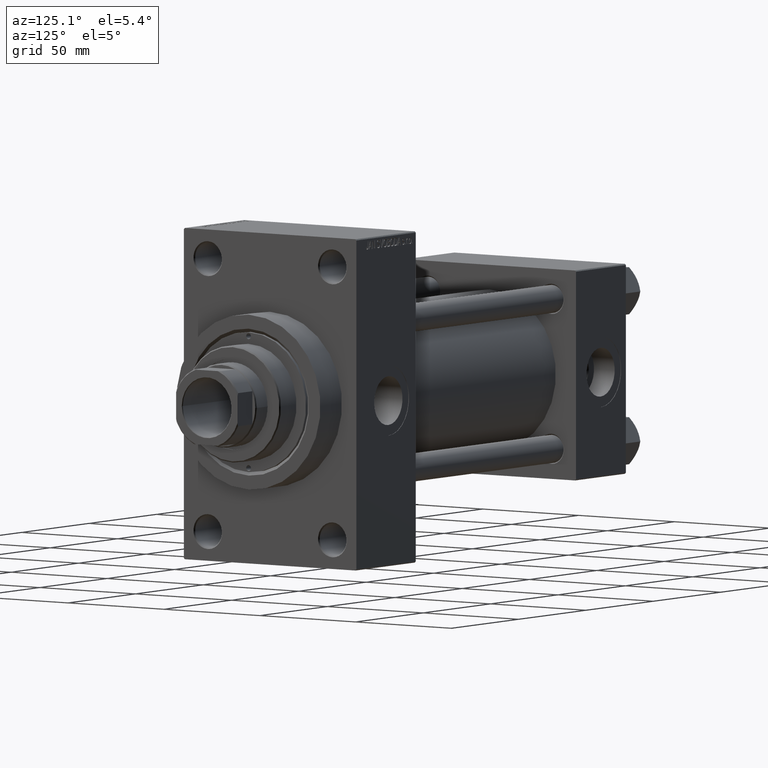
[diagram: clean part render]
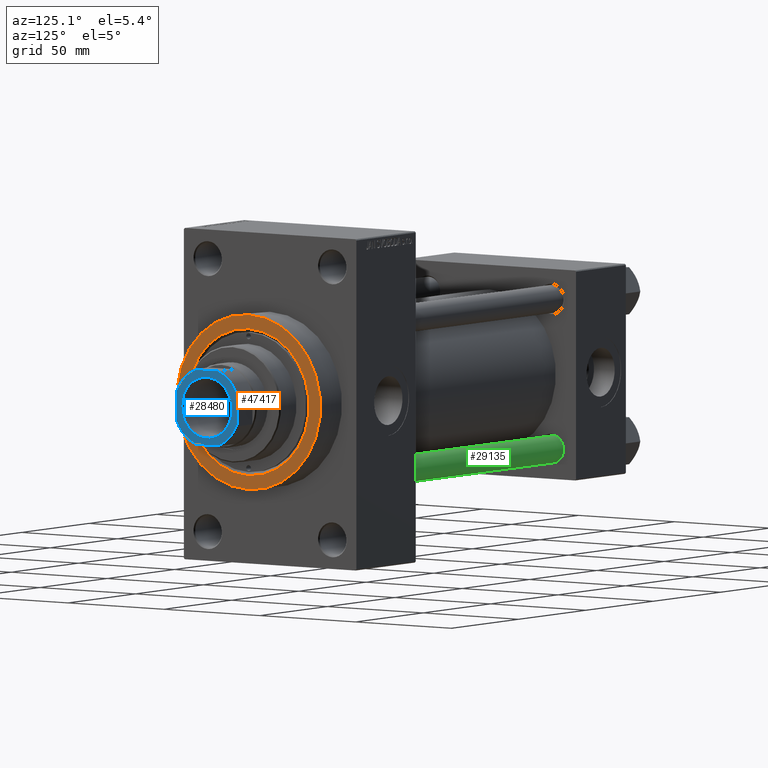
[diagram: same view with three faces highlighted in distinct colors, each labeled with its STEP entity id]
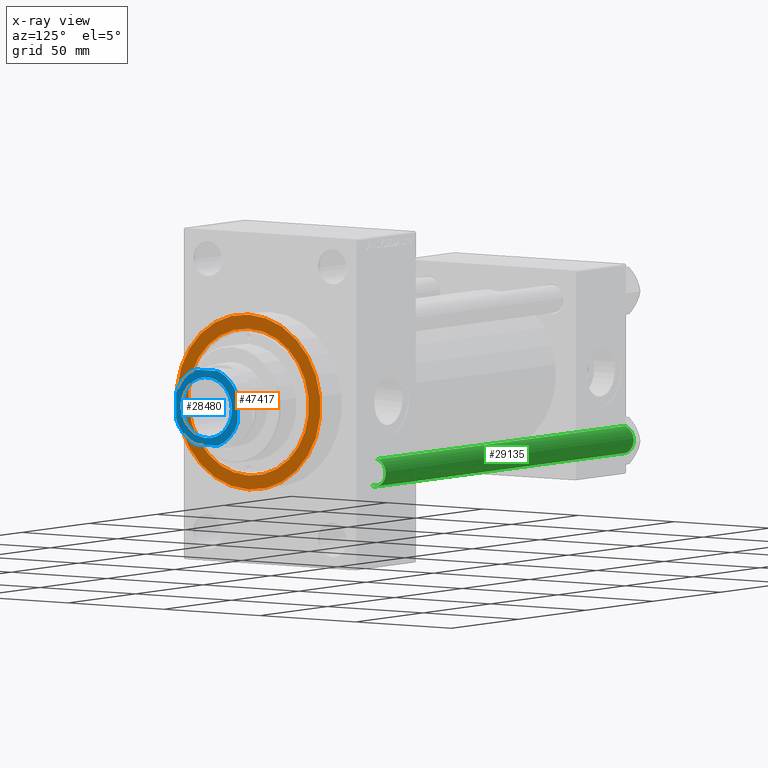
[diagram: x-ray of the same camera — body ghosted, the three highlighted faces saturated]
A machine part, auxiliary view with three faces highlighted in distinct colors.
The next image is the same camera in x-ray (body ghosted, the three faces saturated) — at least one of them is partly hidden behind the body in this view.
Their STEP definitions:

[orange] entity #47417 — the highlighted planar face has unit normal (1, 0, 0).
#881 = AXIS2_PLACEMENT_3D ( 'NONE', #23829, #16165, #20226 ) ;
#2621 = CARTESIAN_POINT ( 'NONE',  ( 216.0000000000000284, 0.000000000000000000, 0.000000000000000000 ) ) ;
#3825 = DIRECTION ( 'NONE',  ( 1.000000000000000000, 0.000000000000000000, 0.000000000000000000 ) ) ;
#4688 = CIRCLE ( 'NONE', #44508, 37.50000000000000711 ) ;
#5022 = CARTESIAN_POINT ( 'NONE',  ( 216.0000000000000284, 0.000000000000000000, -31.50000000000011013 ) ) ;
#5537 = EDGE_LOOP ( 'NONE', ( #28622, #43764 ) ) ;
#5677 = CARTESIAN_POINT ( 'NONE',  ( 216.0000000000000284, 0.000000000000000000, 37.50000000000000711 ) ) ;
#6697 = DIRECTION ( 'NONE',  ( 1.000000000000000000, 0.000000000000000000, 0.000000000000000000 ) ) ;
#10734 = DIRECTION ( 'NONE',  ( 1.000000000000000000, 0.000000000000000000, 0.000000000000000000 ) ) ;
#11610 = CIRCLE ( 'NONE', #881, 31.50000000000011013 ) ;
#13371 = ORIENTED_EDGE ( 'NONE', *, *, #20699, .T. ) ;
#14855 = FACE_BOUND ( 'NONE', #26740, .T. ) ;
#16165 = DIRECTION ( 'NONE',  ( -1.000000000000000000, -0.000000000000000000, -0.000000000000000000 ) ) ;
#16962 = EDGE_CURVE ( 'NONE', #43331, #40019, #42689, .T. ) ;
#17476 = VERTEX_POINT ( 'NONE', #17763 ) ;
#17763 = CARTESIAN_POINT ( 'NONE',  ( 216.0000000000000284, 3.857637417314175311E-15, 31.50000000000011013 ) ) ;
#17926 = CARTESIAN_POINT ( 'NONE',  ( 216.0000000000000284, 0.000000000000000000, 0.000000000000000000 ) ) ;
#18455 = DIRECTION ( 'NONE',  ( 0.000000000000000000, 0.000000000000000000, -1.000000000000000000 ) ) ;
#20226 = DIRECTION ( 'NONE',  ( 0.000000000000000000, 0.000000000000000000, -1.000000000000000000 ) ) ;
#20699 = EDGE_CURVE ( 'NONE', #42938, #17476, #42119, .T. ) ;
#21534 = CARTESIAN_POINT ( 'NONE',  ( 216.0000000000000284, 0.000000000000000000, 0.000000000000000000 ) ) ;
#23829 = CARTESIAN_POINT ( 'NONE',  ( 216.0000000000000284, 0.000000000000000000, 0.000000000000000000 ) ) ;
#24578 = EDGE_CURVE ( 'NONE', #40019, #43331, #4688, .T. ) ;
#25343 = DIRECTION ( 'NONE',  ( 0.000000000000000000, 0.000000000000000000, -1.000000000000000000 ) ) ;
#25396 = CARTESIAN_POINT ( 'NONE',  ( 216.0000000000000284, 0.000000000000000000, 0.000000000000000000 ) ) ;
#25946 = EDGE_CURVE ( 'NONE', #17476, #42938, #11610, .T. ) ;
#26063 = AXIS2_PLACEMENT_3D ( 'NONE', #2621, #40205, #28274 ) ;
#26740 = EDGE_LOOP ( 'NONE', ( #13371, #40189 ) ) ;
#28157 = AXIS2_PLACEMENT_3D ( 'NONE', #25396, #3825, #18455 ) ;
#28274 = DIRECTION ( 'NONE',  ( 0.000000000000000000, 0.000000000000000000, -1.000000000000000000 ) ) ;
#28622 = ORIENTED_EDGE ( 'NONE', *, *, #16962, .T. ) ;
#29010 = FACE_OUTER_BOUND ( 'NONE', #5537, .T. ) ;
#30467 = AXIS2_PLACEMENT_3D ( 'NONE', #21534, #6697, #39768 ) ;
#39768 = DIRECTION ( 'NONE',  ( 0.000000000000000000, 0.000000000000000000, -1.000000000000000000 ) ) ;
#39993 = CARTESIAN_POINT ( 'NONE',  ( 216.0000000000000284, 4.592425496802575156E-15, -37.50000000000000711 ) ) ;
#40019 = VERTEX_POINT ( 'NONE', #39993 ) ;
#40189 = ORIENTED_EDGE ( 'NONE', *, *, #25946, .T. ) ;
#40205 = DIRECTION ( 'NONE',  ( -1.000000000000000000, -0.000000000000000000, -0.000000000000000000 ) ) ;
#42119 = CIRCLE ( 'NONE', #26063, 31.50000000000011013 ) ;
#42689 = CIRCLE ( 'NONE', #30467, 37.50000000000000711 ) ;
#42938 = VERTEX_POINT ( 'NONE', #5022 ) ;
#43331 = VERTEX_POINT ( 'NONE', #5677 ) ;
#43642 = PLANE ( 'NONE',  #28157 ) ;
#43764 = ORIENTED_EDGE ( 'NONE', *, *, #24578, .T. ) ;
#44508 = AXIS2_PLACEMENT_3D ( 'NONE', #17926, #10734, #25343 ) ;
#47417 = ADVANCED_FACE ( 'NONE', ( #14855, #29010 ), #43642, .T. ) ;

[blue] entity #28480 — the highlighted planar face has unit normal (1, 0, 0).
#174 = VERTEX_POINT ( 'NONE', #19118 ) ;
#651 = CIRCLE ( 'NONE', #32822, 13.04999999999997762 ) ;
#1338 = ORIENTED_EDGE ( 'NONE', *, *, #27290, .T. ) ;
#1423 = DIRECTION ( 'NONE',  ( 1.000000000000000000, 0.000000000000000000, 0.000000000000000000 ) ) ;
#1644 = VERTEX_POINT ( 'NONE', #32278 ) ;
#2126 = DIRECTION ( 'NONE',  ( 1.000000000000000000, 0.000000000000000000, 0.000000000000000000 ) ) ;
#2647 = EDGE_CURVE ( 'NONE', #22605, #16824, #5615, .T. ) ;
#3040 = VERTEX_POINT ( 'NONE', #31949 ) ;
#3537 = VECTOR ( 'NONE', #33500, 1000.000000000000000 ) ;
#3793 = DIRECTION ( 'NONE',  ( -0.000000000000000000, 0.000000000000000000, 1.000000000000000000 ) ) ;
#4393 = CARTESIAN_POINT ( 'NONE',  ( 16.00000000000000000, -5.744562646538085460, 210.0000000000000284 ) ) ;
#4765 = ORIENTED_EDGE ( 'NONE', *, *, #6027, .T. ) ;
#4993 = CARTESIAN_POINT ( 'NONE',  ( 0.000000000000000000, 0.000000000000000000, 210.0000000000000284 ) ) ;
#5227 = VERTEX_POINT ( 'NONE', #45173 ) ;
#5233 = DIRECTION ( 'NONE',  ( -0.000000000000000000, 0.000000000000000000, 1.000000000000000000 ) ) ;
#5615 = CIRCLE ( 'NONE', #46968, 17.00000000000001776 ) ;
#6027 = EDGE_CURVE ( 'NONE', #16824, #1644, #28244, .T. ) ;
#6805 = LINE ( 'NONE', #21414, #35118 ) ;
#6877 = VERTEX_POINT ( 'NONE', #39130 ) ;
#8005 = LINE ( 'NONE', #29342, #35249 ) ;
#8302 = DIRECTION ( 'NONE',  ( -0.000000000000000000, 0.000000000000000000, 1.000000000000000000 ) ) ;
#9528 = DIRECTION ( 'NONE',  ( 0.000000000000000000, -0.000000000000000000, -1.000000000000000000 ) ) ;
#9570 = VECTOR ( 'NONE', #40164, 1000.000000000000000 ) ;
#11221 = CARTESIAN_POINT ( 'NONE',  ( -16.00000000000000000, 16.00000000000000000, 210.0000000000000284 ) ) ;
#11224 = ORIENTED_EDGE ( 'NONE', *, *, #17610, .T. ) ;
#12648 = DIRECTION ( 'NONE',  ( 1.000000000000000000, 0.000000000000000000, 0.000000000000000000 ) ) ;
#13319 = AXIS2_PLACEMENT_3D ( 'NONE', #42093, #8302, #19551 ) ;
#13990 = VERTEX_POINT ( 'NONE', #14084 ) ;
#14084 = CARTESIAN_POINT ( 'NONE',  ( 5.744562646538136974, 16.00000000000000000, 210.0000000000000284 ) ) ;
#14153 = EDGE_CURVE ( 'NONE', #13990, #42273, #18392, .T. ) ;
#14314 = ORIENTED_EDGE ( 'NONE', *, *, #14153, .T. ) ;
#14957 = DIRECTION ( 'NONE',  ( -1.084202172485504434E-16, 1.000000000000000000, -0.000000000000000000 ) ) ;
#15391 = AXIS2_PLACEMENT_3D ( 'NONE', #29296, #42978, #43936 ) ;
#16824 = VERTEX_POINT ( 'NONE', #26131 ) ;
#17610 = EDGE_CURVE ( 'NONE', #6877, #13990, #41938, .T. ) ;
#18392 = LINE ( 'NONE', #11221, #3537 ) ;
#18816 = ORIENTED_EDGE ( 'NONE', *, *, #19312, .T. ) ;
#19118 = CARTESIAN_POINT ( 'NONE',  ( -13.04999999999997762, 1.598164072887293210E-15, 210.0000000000000284 ) ) ;
#19312 = EDGE_CURVE ( 'NONE', #5227, #22605, #6805, .T. ) ;
#19409 = VERTEX_POINT ( 'NONE', #4393 ) ;
#19551 = DIRECTION ( 'NONE',  ( 1.000000000000000000, 0.000000000000000000, 0.000000000000000000 ) ) ;
#19639 = EDGE_CURVE ( 'NONE', #174, #3040, #651, .T. ) ;
#19718 = ORIENTED_EDGE ( 'NONE', *, *, #2647, .T. ) ;
#21414 = CARTESIAN_POINT ( 'NONE',  ( -16.00000000000000000, 16.00000000000000000, 210.0000000000000284 ) ) ;
#21858 = PLANE ( 'NONE',  #15391 ) ;
#22605 = VERTEX_POINT ( 'NONE', #35532 ) ;
#23804 = EDGE_LOOP ( 'NONE', ( #1338, #11224, #14314, #25559, #18816, #19718, #4765, #40094 ) ) ;
#25448 = FACE_BOUND ( 'NONE', #41201, .T. ) ;
#25559 = ORIENTED_EDGE ( 'NONE', *, *, #34795, .T. ) ;
#25766 = CARTESIAN_POINT ( 'NONE',  ( -16.00000000000000000, -15.99999999999999645, 210.0000000000000284 ) ) ;
#26131 = CARTESIAN_POINT ( 'NONE',  ( -5.744562646538093453, -15.99999999999999645, 210.0000000000000284 ) ) ;
#26476 = CIRCLE ( 'NONE', #27911, 17.00000000000001776 ) ;
#27290 = EDGE_CURVE ( 'NONE', #19409, #6877, #8005, .T. ) ;
#27737 = CARTESIAN_POINT ( 'NONE',  ( 0.000000000000000000, 0.000000000000000000, 210.0000000000000284 ) ) ;
#27911 = AXIS2_PLACEMENT_3D ( 'NONE', #44329, #3793, #36893 ) ;
#28244 = LINE ( 'NONE', #25766, #9570 ) ;
#28480 = ADVANCED_FACE ( 'NONE', ( #25448, #40090 ), #21858, .T. ) ;
#28966 = CARTESIAN_POINT ( 'NONE',  ( -5.744562646537909600, 16.00000000000000000, 210.0000000000000284 ) ) ;
#29296 = CARTESIAN_POINT ( 'NONE',  ( 0.000000000000000000, 0.000000000000000000, 210.0000000000000284 ) ) ;
#29342 = CARTESIAN_POINT ( 'NONE',  ( 15.99999999999999645, 16.00000000000000000, 210.0000000000000284 ) ) ;
#31278 = ORIENTED_EDGE ( 'NONE', *, *, #38013, .T. ) ;
#31852 = CARTESIAN_POINT ( 'NONE',  ( 0.000000000000000000, 0.000000000000000000, 210.0000000000000284 ) ) ;
#31949 = CARTESIAN_POINT ( 'NONE',  ( 13.04999999999997762, 0.000000000000000000, 210.0000000000000284 ) ) ;
#32278 = CARTESIAN_POINT ( 'NONE',  ( 5.744562646538093453, -15.99999999999999645, 210.0000000000000284 ) ) ;
#32444 = DIRECTION ( 'NONE',  ( 0.000000000000000000, -1.000000000000000000, 0.000000000000000000 ) ) ;
#32822 = AXIS2_PLACEMENT_3D ( 'NONE', #27737, #9528, #12648 ) ;
#33500 = DIRECTION ( 'NONE',  ( -1.000000000000000000, -0.000000000000000000, -0.000000000000000000 ) ) ;
#34073 = AXIS2_PLACEMENT_3D ( 'NONE', #31852, #35914, #2126 ) ;
#34111 = ORIENTED_EDGE ( 'NONE', *, *, #19639, .T. ) ;
#34795 = EDGE_CURVE ( 'NONE', #42273, #5227, #40873, .T. ) ;
#34828 = CIRCLE ( 'NONE', #34073, 13.04999999999997762 ) ;
#35118 = VECTOR ( 'NONE', #32444, 1000.000000000000000 ) ;
#35249 = VECTOR ( 'NONE', #14957, 1000.000000000000000 ) ;
#35532 = CARTESIAN_POINT ( 'NONE',  ( -16.00000000000000000, -5.744562646538084572, 210.0000000000000284 ) ) ;
#35914 = DIRECTION ( 'NONE',  ( 0.000000000000000000, -0.000000000000000000, -1.000000000000000000 ) ) ;
#36893 = DIRECTION ( 'NONE',  ( 1.000000000000000000, 0.000000000000000000, 0.000000000000000000 ) ) ;
#37189 = CARTESIAN_POINT ( 'NONE',  ( 0.000000000000000000, 0.000000000000000000, 210.0000000000000284 ) ) ;
#37649 = DIRECTION ( 'NONE',  ( -0.000000000000000000, 0.000000000000000000, 1.000000000000000000 ) ) ;
#38013 = EDGE_CURVE ( 'NONE', #3040, #174, #34828, .T. ) ;
#39130 = CARTESIAN_POINT ( 'NONE',  ( 16.00000000000000000, 5.744562646538137862, 210.0000000000000284 ) ) ;
#40090 = FACE_OUTER_BOUND ( 'NONE', #23804, .T. ) ;
#40094 = ORIENTED_EDGE ( 'NONE', *, *, #40867, .T. ) ;
#40164 = DIRECTION ( 'NONE',  ( 1.000000000000000000, 0.000000000000000000, 0.000000000000000000 ) ) ;
#40867 = EDGE_CURVE ( 'NONE', #1644, #19409, #26476, .T. ) ;
#40873 = CIRCLE ( 'NONE', #13319, 16.99999999999996092 ) ;
#41192 = AXIS2_PLACEMENT_3D ( 'NONE', #37189, #37649, #1423 ) ;
#41201 = EDGE_LOOP ( 'NONE', ( #31278, #34111 ) ) ;
#41938 = CIRCLE ( 'NONE', #41192, 17.00000000000003553 ) ;
#42093 = CARTESIAN_POINT ( 'NONE',  ( 0.000000000000000000, 0.000000000000000000, 210.0000000000000284 ) ) ;
#42273 = VERTEX_POINT ( 'NONE', #28966 ) ;
#42978 = DIRECTION ( 'NONE',  ( -0.000000000000000000, 0.000000000000000000, 1.000000000000000000 ) ) ;
#43936 = DIRECTION ( 'NONE',  ( 1.000000000000000000, 0.000000000000000000, 0.000000000000000000 ) ) ;
#44329 = CARTESIAN_POINT ( 'NONE',  ( 0.000000000000000000, 0.000000000000000000, 210.0000000000000284 ) ) ;
#45173 = CARTESIAN_POINT ( 'NONE',  ( -16.00000000000000000, 5.744562646537909600, 210.0000000000000284 ) ) ;
#45520 = DIRECTION ( 'NONE',  ( 1.000000000000000000, 0.000000000000000000, 0.000000000000000000 ) ) ;
#46968 = AXIS2_PLACEMENT_3D ( 'NONE', #4993, #5233, #45520 ) ;

[green] entity #29135 — the highlighted cylindrical surface (edge-blend (fillet) strip) has radius 6 mm, axis along (1, -0, 0).
#2066 = DIRECTION ( 'NONE',  ( 1.000000000000000000, 0.000000000000000000, 0.000000000000000000 ) ) ;
#2598 = EDGE_CURVE ( 'NONE', #35150, #32692, #43869, .T. ) ;
#4176 = EDGE_LOOP ( 'NONE', ( #31476, #13015, #16393, #31300 ) ) ;
#6327 = DIRECTION ( 'NONE',  ( -0.000000000000000000, -0.000000000000000000, -1.000000000000000000 ) ) ;
#8824 = CARTESIAN_POINT ( 'NONE',  ( -6.000000000000000888, 0.000000000000000000, 0.5000000000000281997 ) ) ;
#9268 = CARTESIAN_POINT ( 'NONE',  ( 0.000000000000000000, 0.000000000000000000, 0.5000000000000281997 ) ) ;
#11016 = DIRECTION ( 'NONE',  ( -0.000000000000000000, -0.000000000000000000, -1.000000000000000000 ) ) ;
#12407 = CARTESIAN_POINT ( 'NONE',  ( 0.000000000000000000, 0.000000000000000000, 184.5000000000000000 ) ) ;
#13015 = ORIENTED_EDGE ( 'NONE', *, *, #2598, .T. ) ;
#13202 = CARTESIAN_POINT ( 'NONE',  ( 6.000000000000000888, 7.347880794884120722E-16, 184.5000000000000000 ) ) ;
#14268 = DIRECTION ( 'NONE',  ( -1.000000000000000000, 0.000000000000000000, 0.000000000000000000 ) ) ;
#14734 = DIRECTION ( 'NONE',  ( -0.000000000000000000, -0.000000000000000000, -1.000000000000000000 ) ) ;
#16393 = ORIENTED_EDGE ( 'NONE', *, *, #38262, .T. ) ;
#16562 = VERTEX_POINT ( 'NONE', #27368 ) ;
#18913 = CARTESIAN_POINT ( 'NONE',  ( 6.000000000000000888, 7.347880794884120722E-16, 185.0000000000000000 ) ) ;
#20575 = CARTESIAN_POINT ( 'NONE',  ( 0.000000000000000000, 0.000000000000000000, 185.0000000000000000 ) ) ;
#20768 = AXIS2_PLACEMENT_3D ( 'NONE', #20575, #14734, #14268 ) ;
#20881 = EDGE_CURVE ( 'NONE', #16562, #35150, #42901, .T. ) ;
#21938 = FACE_OUTER_BOUND ( 'NONE', #4176, .T. ) ;
#22238 = AXIS2_PLACEMENT_3D ( 'NONE', #12407, #44794, #37824 ) ;
#22592 = CIRCLE ( 'NONE', #40979, 6.000000000000000888 ) ;
#22616 = VECTOR ( 'NONE', #6327, 1000.000000000000000 ) ;
#22703 = VERTEX_POINT ( 'NONE', #8824 ) ;
#27368 = CARTESIAN_POINT ( 'NONE',  ( -6.000000000000000888, 0.000000000000000000, 184.5000000000000000 ) ) ;
#29135 = ADVANCED_FACE ( 'NONE', ( #21938 ), #39918, .T. ) ;
#31300 = ORIENTED_EDGE ( 'NONE', *, *, #42740, .F. ) ;
#31476 = ORIENTED_EDGE ( 'NONE', *, *, #20881, .T. ) ;
#31629 = VECTOR ( 'NONE', #11016, 1000.000000000000000 ) ;
#31732 = CARTESIAN_POINT ( 'NONE',  ( -6.000000000000000888, 0.000000000000000000, 185.0000000000000000 ) ) ;
#32692 = VERTEX_POINT ( 'NONE', #46867 ) ;
#35150 = VERTEX_POINT ( 'NONE', #13202 ) ;
#35387 = DIRECTION ( 'NONE',  ( -0.000000000000000000, -0.000000000000000000, 1.000000000000000000 ) ) ;
#35804 = LINE ( 'NONE', #31732, #22616 ) ;
#37824 = DIRECTION ( 'NONE',  ( 1.000000000000000000, 0.000000000000000000, 0.000000000000000000 ) ) ;
#38262 = EDGE_CURVE ( 'NONE', #32692, #22703, #22592, .T. ) ;
#39918 = CYLINDRICAL_SURFACE ( 'NONE', #20768, 6.000000000000000888 ) ;
#40979 = AXIS2_PLACEMENT_3D ( 'NONE', #9268, #35387, #2066 ) ;
#42740 = EDGE_CURVE ( 'NONE', #16562, #22703, #35804, .T. ) ;
#42901 = CIRCLE ( 'NONE', #22238, 6.000000000000000888 ) ;
#43869 = LINE ( 'NONE', #18913, #31629 ) ;
#44794 = DIRECTION ( 'NONE',  ( 0.000000000000000000, 0.000000000000000000, -1.000000000000000000 ) ) ;
#46867 = CARTESIAN_POINT ( 'NONE',  ( 6.000000000000000888, 7.347880794884120722E-16, 0.5000000000000281997 ) ) ;